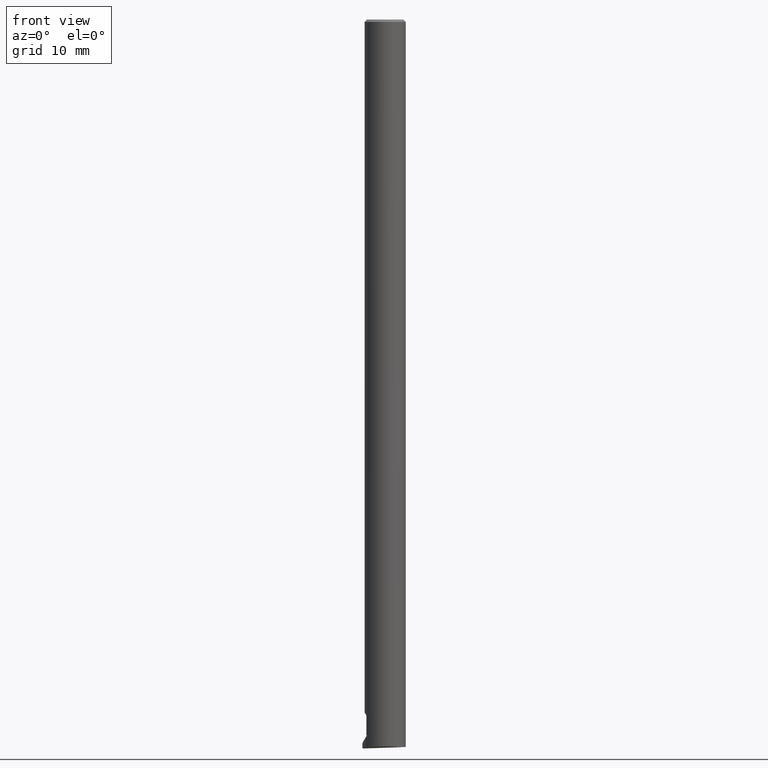
[diagram: clean part render]
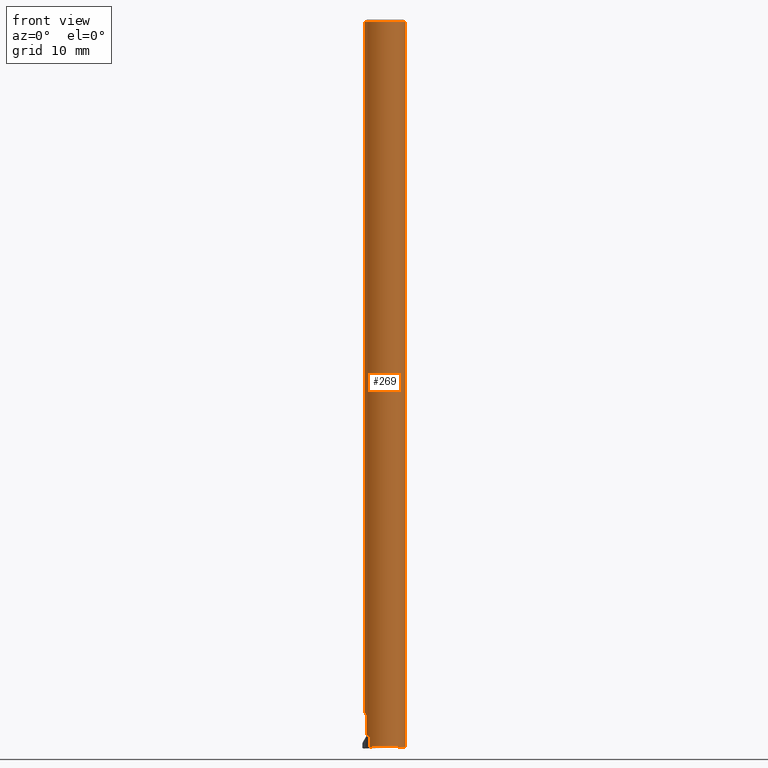
[diagram: same view with one face highlighted and labeled with its STEP entity id]
A machine part, front view. The second image highlights one B-rep face of the part: STEP entity #269.
In plain terms, the highlighted cylindrical surface (edge-blend (fillet) strip) has radius 1.75 mm, axis along (-0, -0, 1).
Its self-contained STEP definition (entity closure, byte-faithful):
#121=VERTEX_POINT('NONE',#331);
#127=EDGE_CURVE('NONE',#307,#121,#338,.T.);
#179=VERTEX_POINT('NONE',#395);
#183=VERTEX_POINT('NONE',#399);
#185=VERTEX_POINT('NONE',#401);
#189=EDGE_CURVE('NONE',#185,#121,#407,.T.);
#195=VERTEX_POINT('NONE',#415);
#201=EDGE_CURVE('NONE',#179,#285,#422,.F.);
#207=EDGE_CURVE('NONE',#297,#307,#428,.T.);
#217=EDGE_CURVE('NONE',#183,#291,#440,.F.);
#235=VERTEX_POINT('NONE',#458);
#241=EDGE_CURVE('NONE',#285,#297,#465,.F.);
#247=EDGE_CURVE('NONE',#185,#183,#471,.F.);
#251=EDGE_CURVE('NONE',#291,#195,#475,.F.);
#269=ADVANCED_FACE('NONE',(#498),#499,.T.);
#281=EDGE_CURVE('NONE',#179,#235,#511,.T.);
#285=VERTEX_POINT('NONE',#515);
#291=VERTEX_POINT('NONE',#521);
#297=VERTEX_POINT('NONE',#528);
#307=VERTEX_POINT('NONE',#538);
#311=EDGE_CURVE('NONE',#195,#235,#542,.T.);
#331=CARTESIAN_POINT('',(-1.57632657181676,-0.173673428183238,-0.199999999999996));
#338=CIRCLE('',#561,1.75);
#395=CARTESIAN_POINT('',(1.53467671607616,-1.27375072107892,-61.8843772173971));
#399=CARTESIAN_POINT('',(-1.42632657181674,-0.882545772121169,-59.1820508075689));
#401=CARTESIAN_POINT('',(-1.57632657181676,-0.173673428183238,-58.9222431864335));
#407=LINE('',#655,#656);
#415=CARTESIAN_POINT('',(-1.16690434727498,-1.29855174513468,-60.9));
#422=ELLIPSE('',#674,1.75106670252294,1.75);
#428=LINE('',#689,#690);
#440=LINE('',#744,#745);
#458=CARTESIAN_POINT('',(-1.16690434727498,-1.29855174513468,-61.8817705247299));
#465=LINE('',#789,#790);
#471=ELLIPSE('',#801,3.49999999999993,1.75);
#475=CIRCLE('',#806,1.75);
#498=FACE_OUTER_BOUND('',#846,.T.);
#499=CYLINDRICAL_SURFACE('',#847,1.75);
#511=ELLIPSE('',#882,1.75963948923615,1.75);
#515=CARTESIAN_POINT('',(1.92367342818324,-0.173673428183261,-61.8707931528805));
#521=CARTESIAN_POINT('',(-1.42632657181674,-0.882545772121169,-60.9));
#528=CARTESIAN_POINT('',(1.92367342818324,-0.173673428183251,-60.1035533905933));
#538=CARTESIAN_POINT('',(1.92367342818324,-0.173673428183251,-0.199999999999996));
#542=LINE('',#922,#923);
#561=AXIS2_PLACEMENT_3D('',#938,#939,#940);
#655=CARTESIAN_POINT('',(-1.57632657181676,-0.173673428183238,3.99542205296766));
#656=VECTOR('',#1005,1000.0);
#674=AXIS2_PLACEMENT_3D('',#1034,#1035,#1036);
#689=CARTESIAN_POINT('',(1.92367342818324,-0.173673428183251,3.99542205296766));
#690=VECTOR('',#1038,1000.0);
#744=CARTESIAN_POINT('',(-1.42632657181674,-0.882545772121169,3.99542205296765));
#745=VECTOR('',#1052,1.0);
#789=CARTESIAN_POINT('',(1.92367342818324,-0.173673428183261,3.99542205296765));
#790=VECTOR('',#1075,1.0);
#801=AXIS2_PLACEMENT_3D('',#1078,#1079,#1080);
#806=AXIS2_PLACEMENT_3D('',#1081,#1082,#1083);
#846=EDGE_LOOP('',(#1125,#1126,#1127,#1128,#1129,#1130,#1131,#1132,#1133,#1134));
#847=AXIS2_PLACEMENT_3D('',#1135,#1136,#1137);
#882=AXIS2_PLACEMENT_3D('',#1140,#1141,#1142);
#922=CARTESIAN_POINT('',(-1.16690434727497,-1.29855174513468,3.99542205296765));
#923=VECTOR('',#1163,1.0);
#938=CARTESIAN_POINT('',(0.173673428183244,-0.173673428183244,-0.199999999999996));
#939=DIRECTION('',(0.0,0.0,-1.0));
#940=DIRECTION('',(1.0,-3.48493555441769E-015,0.0));
#1005=DIRECTION('',(0.0,0.0,1.0));
#1034=CARTESIAN_POINT('',(0.173673428183244,-0.173673428183244,-61.9319044994911));
#1035=DIRECTION('',(0.0348994967025015,-1.21851012047876E-016,-0.999390827019096));
#1036=DIRECTION('',(0.999390827019096,-3.48281262583775E-015,0.0348994967025015));
#1038=DIRECTION('',(0.0,0.0,1.0));
#1052=DIRECTION('',(0.0,-0.0,1.0));
#1075=DIRECTION('',(0.0,0.0,-1.0));
#1078=CARTESIAN_POINT('',(0.173673428183244,-0.173673428183244,-61.953332099679));
#1079=DIRECTION('',(-0.866025403784433,3.02371328761138E-015,-0.50000000000001));
#1080=DIRECTION('',(0.50000000000001,-1.74246777720888E-015,-0.866025403784433));
#1081=CARTESIAN_POINT('',(0.173673428183244,-0.173673428183244,-60.9));
#1082=DIRECTION('',(0.0,0.0,-1.0));
#1083=DIRECTION('',(1.0,-3.48493555441769E-015,0.0));
#1125=ORIENTED_EDGE('',*,*,#189,.F.);
#1126=ORIENTED_EDGE('',*,*,#247,.T.);
#1127=ORIENTED_EDGE('',*,*,#217,.T.);
#1128=ORIENTED_EDGE('',*,*,#251,.T.);
#1129=ORIENTED_EDGE('',*,*,#311,.T.);
#1130=ORIENTED_EDGE('',*,*,#281,.F.);
#1131=ORIENTED_EDGE('',*,*,#201,.T.);
#1132=ORIENTED_EDGE('',*,*,#241,.T.);
#1133=ORIENTED_EDGE('',*,*,#207,.T.);
#1134=ORIENTED_EDGE('',*,*,#127,.T.);
#1135=CARTESIAN_POINT('',(0.173673428183244,-0.173673428183244,3.99542205296766));
#1136=DIRECTION('',(-0.0,-0.0,1.0));
#1137=DIRECTION('',(1.0,-3.48493555441769E-015,0.0));
#1140=CARTESIAN_POINT('',(0.173673428183244,-0.173673428183244,-62.0));
#1141=DIRECTION('',(-3.64959390261321E-016,-0.104528463267646,-0.994521895368274));
#1142=DIRECTION('',(-3.46584471281577E-015,-0.994521895368274,0.104528463267646));
#1163=DIRECTION('',(0.0,0.0,-1.0));